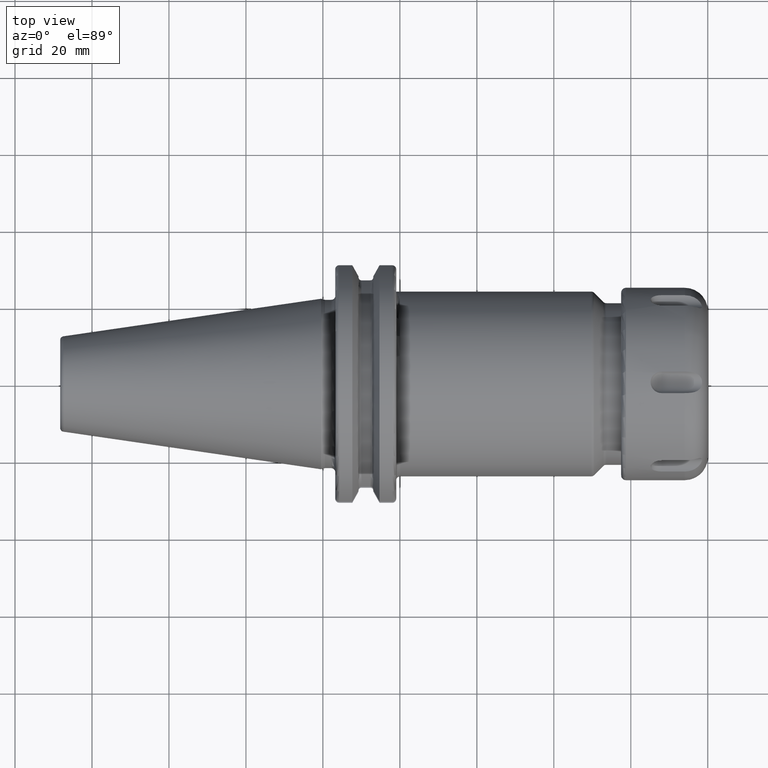
[diagram: clean part render]
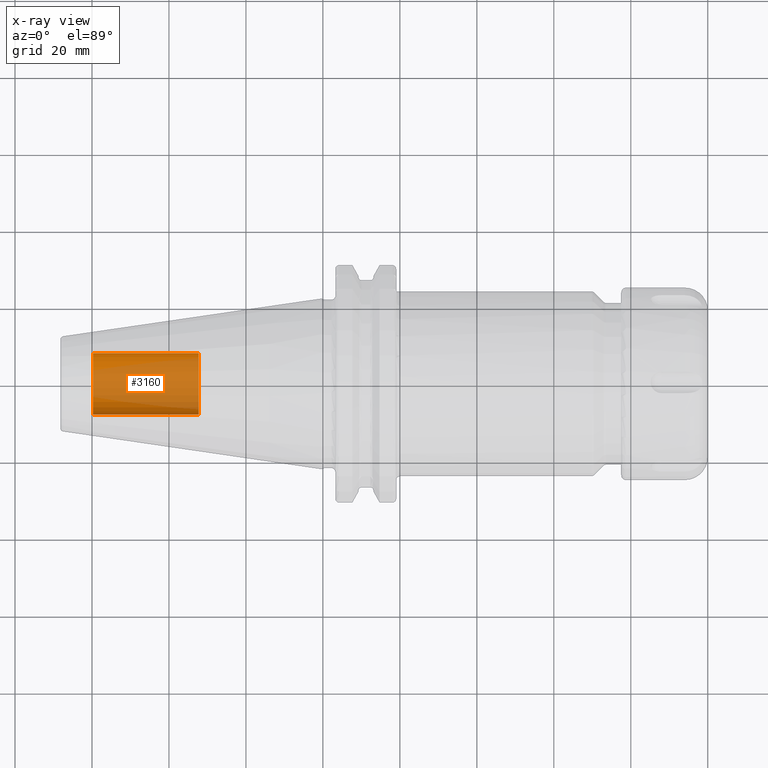
[diagram: x-ray — body ghosted, one internal face saturated and labeled with its STEP entity id]
A machine part, top view, then the same camera in x-ray: the body is ghosted and one INTERNAL B-rep face — a face not visible from any outside direction — is saturated and labeled: STEP entity #3160.
In plain terms, the highlighted cylindrical surface (edge-blend (fillet) strip) has radius 8.0028 mm, axis along (1, 0, 0).
Its self-contained STEP definition (entity closure, byte-faithful):
#3095=CARTESIAN_POINT('',(-5.98E1,0.E0,0.E0));
#3096=DIRECTION('',(-1.E0,0.E0,0.E0));
#3097=DIRECTION('',(0.E0,1.E0,0.E0));
#3098=AXIS2_PLACEMENT_3D('',#3095,#3096,#3097);
#3100=DIRECTION('',(1.E0,0.E0,0.E0));
#3101=VECTOR('',#3100,2.755E1);
#3102=CARTESIAN_POINT('',(-5.98E1,-8.00275E0,0.E0));
#3103=LINE('',#3102,#3101);
#3109=DIRECTION('',(1.E0,0.E0,0.E0));
#3110=VECTOR('',#3109,2.755E1);
#3111=CARTESIAN_POINT('',(-5.98E1,8.00275E0,0.E0));
#3112=LINE('',#3111,#3110);
#3118=CARTESIAN_POINT('',(-3.225E1,0.E0,0.E0));
#3119=DIRECTION('',(1.E0,0.E0,0.E0));
#3120=DIRECTION('',(0.E0,-1.E0,0.E0));
#3121=AXIS2_PLACEMENT_3D('',#3118,#3119,#3120);
#3133=CARTESIAN_POINT('',(-5.98E1,8.00275E0,0.E0));
#3134=CARTESIAN_POINT('',(-5.98E1,-8.00275E0,0.E0));
#3135=VERTEX_POINT('',#3133);
#3136=VERTEX_POINT('',#3134);
#3137=CARTESIAN_POINT('',(-3.225E1,8.00275E0,0.E0));
#3138=CARTESIAN_POINT('',(-3.225E1,-8.00275E0,0.E0));
#3139=VERTEX_POINT('',#3137);
#3140=VERTEX_POINT('',#3138);
#3145=CARTESIAN_POINT('',(-5.98E1,0.E0,0.E0));
#3146=DIRECTION('',(1.E0,0.E0,0.E0));
#3147=DIRECTION('',(0.E0,1.E0,0.E0));
#3148=AXIS2_PLACEMENT_3D('',#3145,#3146,#3147);
#3149=CYLINDRICAL_SURFACE('',#3148,8.00275E0);
#3151=ORIENTED_EDGE('',*,*,#3150,.T.);
#3153=ORIENTED_EDGE('',*,*,#3152,.T.);
#3155=ORIENTED_EDGE('',*,*,#3154,.T.);
#3157=ORIENTED_EDGE('',*,*,#3156,.F.);
#3158=EDGE_LOOP('',(#3151,#3153,#3155,#3157));
#3159=FACE_OUTER_BOUND('',#3158,.F.);
#3160=ADVANCED_FACE('',(#3159),#3149,.T.);
#3099=CIRCLE('',#3098,8.00275E0);
#3122=CIRCLE('',#3121,8.00275E0);
#3150=EDGE_CURVE('',#3135,#3136,#3099,.T.);
#3152=EDGE_CURVE('',#3136,#3140,#3103,.T.);
#3154=EDGE_CURVE('',#3140,#3139,#3122,.T.);
#3156=EDGE_CURVE('',#3135,#3139,#3112,.T.);